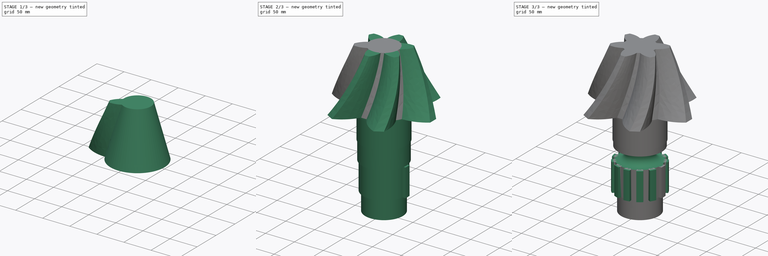
[diagram: build sequence overview — one tinted view per stage of 3, left to right]
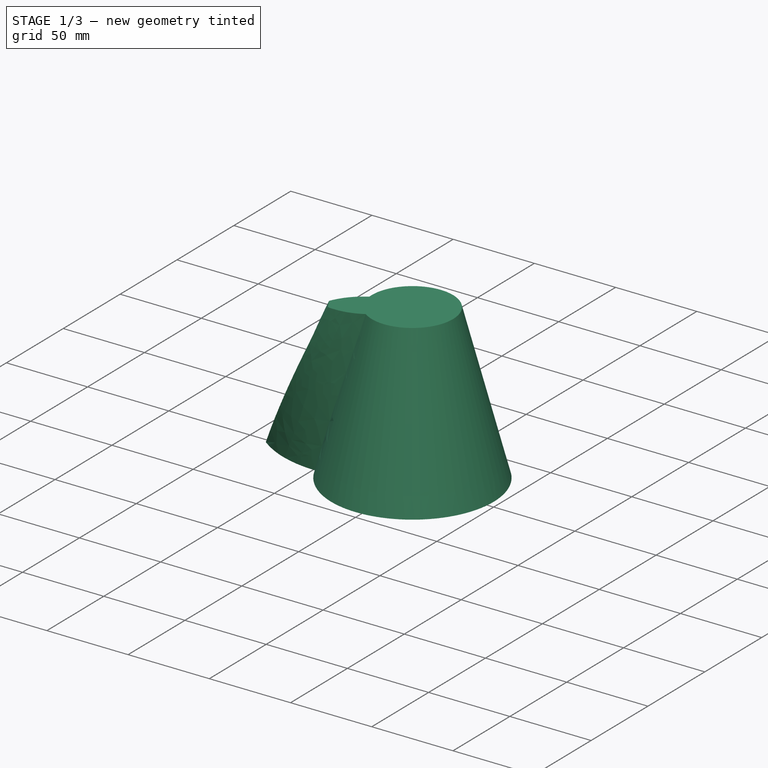
[diagram: stage 1 of 3 — iso view after this stage's code; geometry added in this stage tinted green]
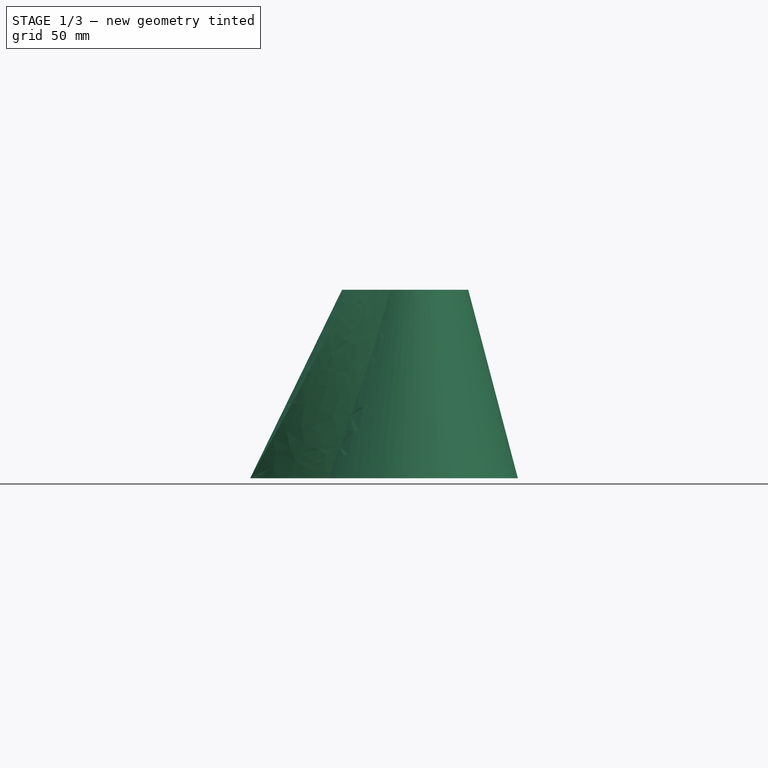
[diagram: stage 1 of 3 — front view after this stage's code; geometry added in this stage tinted green]
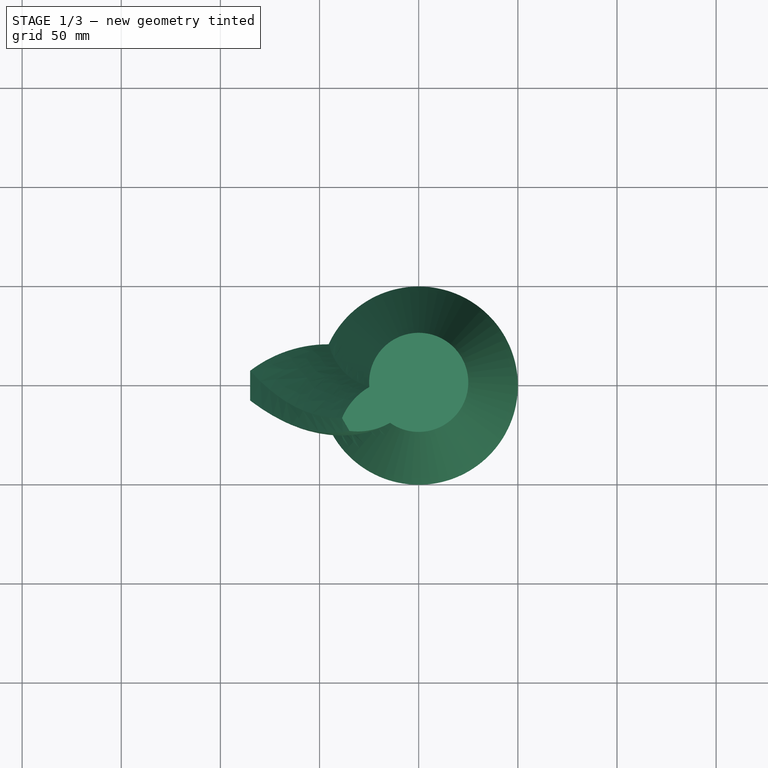
[diagram: stage 1 of 3 — top view after this stage's code; geometry added in this stage tinted green]
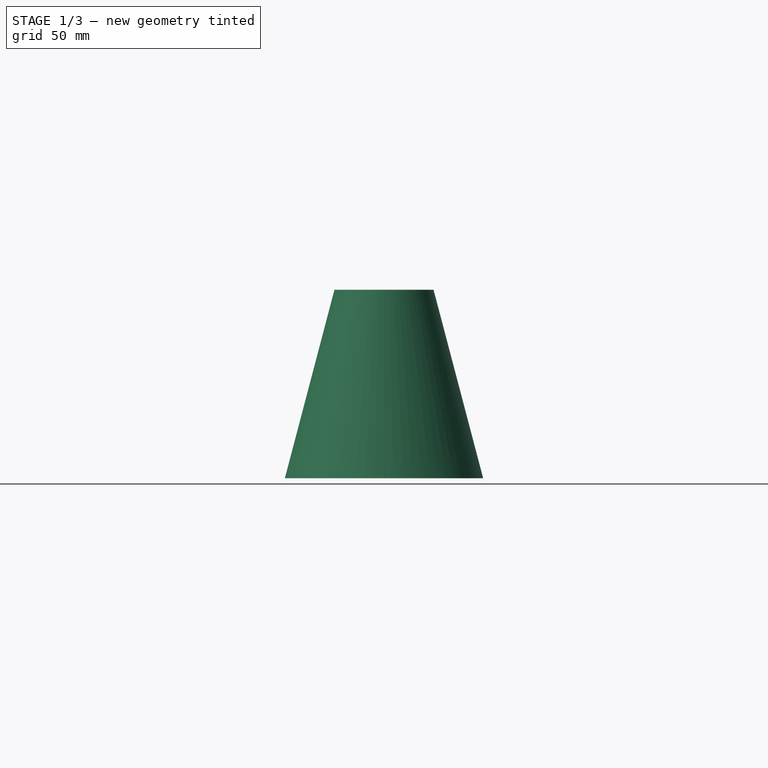
[diagram: stage 1 of 3 — right view after this stage's code; geometry added in this stage tinted green]
FCSTD DOCUMENT  (FreeCAD 0.21R33771 (Git))
Label: ex95
License: All rights reserved
LicenseURL: https://en.wikipedia.org/wiki/All_rights_reserved
objects: Sketcher::SketchObject×6, Part::Part2DObjectPython×2, PartDesign::AdditiveLoft×2, PartDesign::PolarPattern×2, PartDesign::Revolution×1, PartDesign::Pad×1, PartDesign::Groove×1, PartDesign::Body×1
note: 21 computed .brp shape members not serialized (recipe doc carries the construction recipe); baked Part::Feature solids carry a one-line shape summary decoded from their .brp

FEATURE [Sketcher::SketchObject] Sketch
  FullyConstrained = false
  MapMode = 5
  Support = -> [XY_Plane]
  sketch-geometry (4):
    g0: LineSegment StartX=-85 StartY=7.5 StartZ=0 EndX=-85 EndY=-7.5 EndZ=0
    g1: ArcOfCircle CenterX=-45.5197 CenterY=-44.1363 CenterZ=0 NormalX=0 NormalY=0 NormalZ=1 AngleXU=0 Radius=65 StartAngle=1.4076 EndAngle=2.22357
    g2: ArcOfCircle CenterX=-45.5197 CenterY=44.1363 CenterZ=0 NormalX=0 NormalY=0 NormalZ=1 AngleXU=0 Radius=65 StartAngle=4.05962 EndAngle=4.87559
    g3: ArcOfCircle CenterX=10.8671 CenterY=1.54e-14 CenterZ=0 NormalX=0 NormalY=0 NormalZ=1 AngleXU=0 Radius=50 StartAngle=2.73008 EndAngle=3.55311
  constraints (12):
    c: Symmetric(g0,g0,g-1)
    c: Coincident(g1,g0)
    c: Coincident(g2,g0)
    c: Equal(g1,g2)
    c: Symmetric(g1,g2,g-1)
    c: DistanceY(g0,g0) = 15
    c: DistanceY(g2,g1) = 40
    c: DistanceX(g0,g-1) = 85
    c: Radius(g1) = 65
    c: Coincident(g3,g2)
    c: Coincident(g3,g1)
    c: Radius(g3) = 50
FEATURE [Part::Part2DObjectPython] Clone2D  label="Sketch (2D)"  # Draft 2D object (typed FeaturePython)
  Fuse = false
  Objects = -> [Sketch]
  Placement = pos=(0,0,45) rot=(0,0,1;0.261799rad)
  Scale = (0.75,0.75,1)
FEATURE [Part::Part2DObjectPython] Clone2D001  label="Sketch (2D)001"  # Draft 2D object (typed FeaturePython)
  Fuse = false
  Objects = -> [Sketch]
  Placement = pos=(0,0,95) rot=(0,0,1;0.523599rad)
  Scale = (0.5,0.5,1)
FEATURE [Sketcher::SketchObject] Sketch001
  FullyConstrained = true
  MapMode = 5
  Support = -> [XY_Plane]
  sketch-geometry (1):
    g0: Circle CenterX=0 CenterY=0 CenterZ=0 NormalX=0 NormalY=0 NormalZ=1 AngleXU=0 Radius=50
  constraints (2):
    c: Coincident(g0,g-1)
    c: Radius(g0) = 50
FEATURE [Sketcher::SketchObject] Sketch002
  AttachmentOffset = pos=(0,0,95) rot=(0,0,1;0rad)
  FullyConstrained = true
  MapMode = 5
  Placement = pos=(0,0,95) rot=(0,0,1;0rad)
  Support = -> [XY_Plane]
  sketch-geometry (1):
    g0: Circle CenterX=0 CenterY=0 CenterZ=0 NormalX=0 NormalY=0 NormalZ=1 AngleXU=0 Radius=25
  constraints (2):
    c: Coincident(g0,g-1)
    c: Radius(g0) = 25
FEATURE [PartDesign::AdditiveLoft] AdditiveLoft
  Closed = false
  Profile = -> Sketch001
  Ruled = false
  Sections = -> [Sketch002]
FEATURE [PartDesign::AdditiveLoft] AdditiveLoft001
  BaseFeature = -> AdditiveLoft
  Closed = false
  Profile = -> Sketch
  Ruled = false
  Sections = -> [Clone2D,Clone2D001]
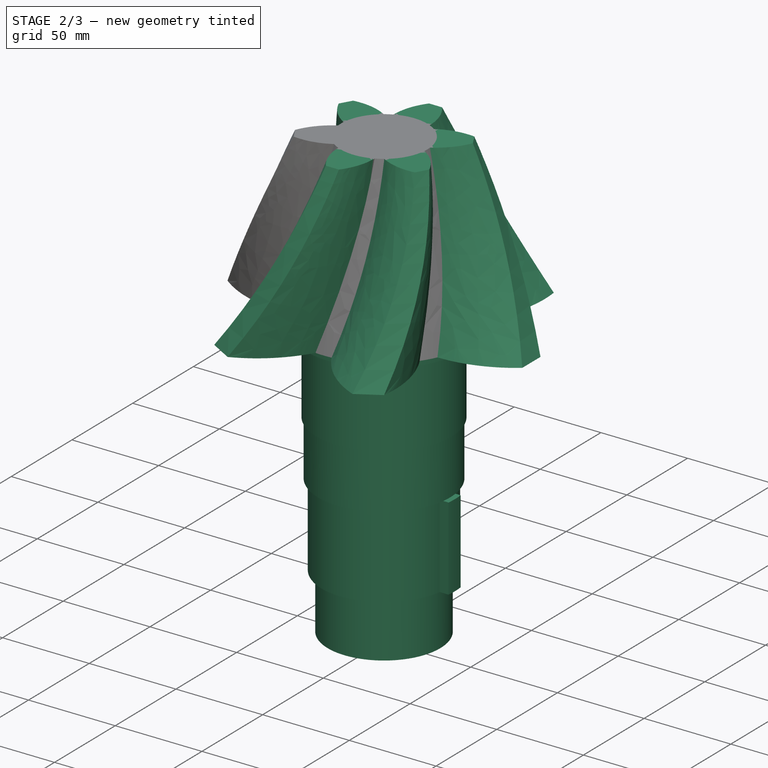
[diagram: stage 2 of 3 — iso view after this stage's code; geometry added in this stage tinted green]
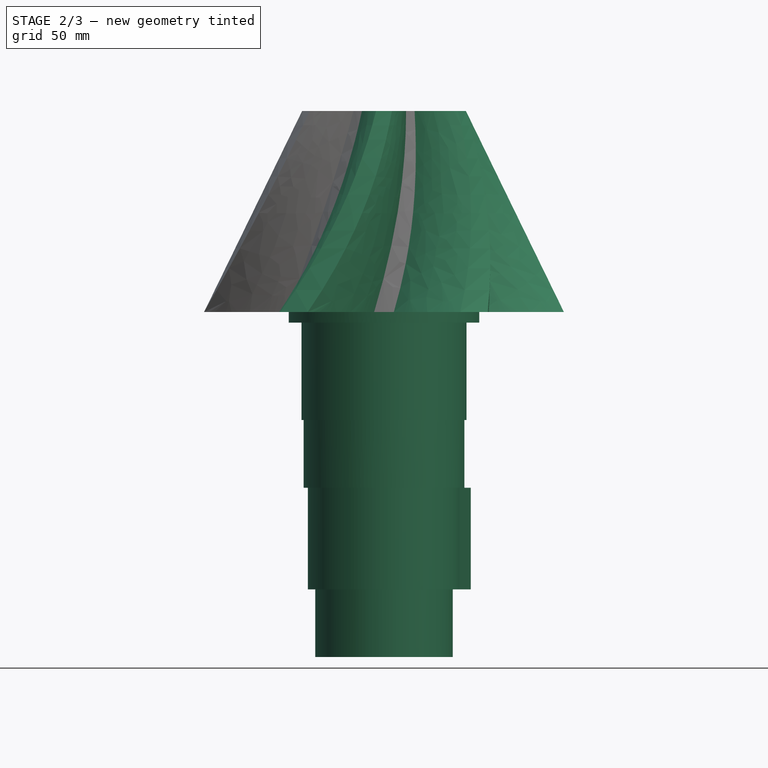
[diagram: stage 2 of 3 — front view after this stage's code; geometry added in this stage tinted green]
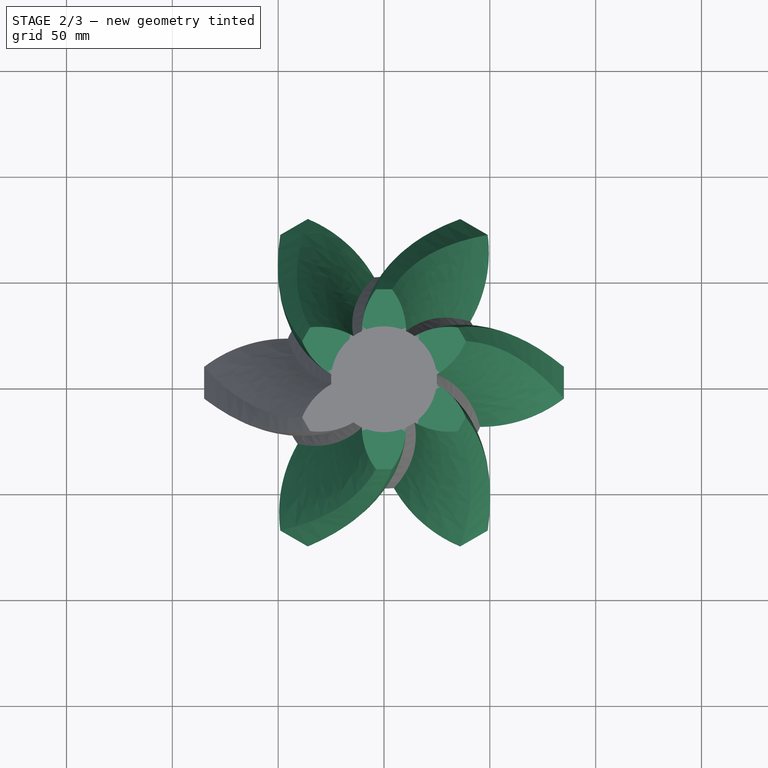
[diagram: stage 2 of 3 — top view after this stage's code; geometry added in this stage tinted green]
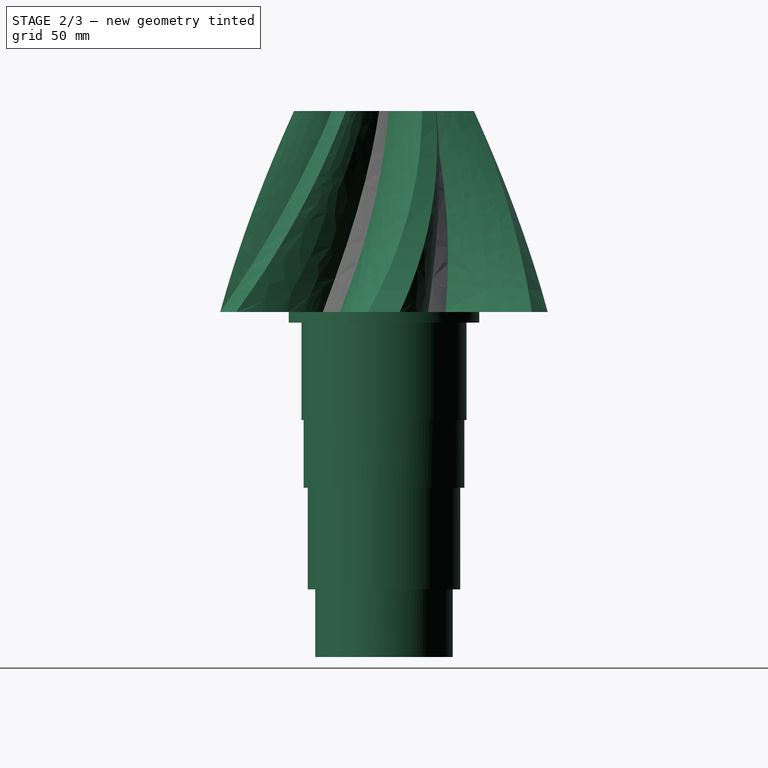
[diagram: stage 2 of 3 — right view after this stage's code; geometry added in this stage tinted green]
FEATURE [PartDesign::PolarPattern] PolarPattern
  Angle = 360
  Axis = -> Sketch [N_Axis]
  BaseFeature = -> AdditiveLoft001
  Occurrences = 6
  Originals = -> [AdditiveLoft001]
FEATURE [Sketcher::SketchObject] Sketch003
  FullyConstrained = true
  MapMode = 5
  Placement = pos=(0,0,0) rot=(1,0,0;1.5708rad)
  Support = -> [XZ_Plane]
  sketch-geometry (12):
    g0: LineSegment StartX=0 StartY=0 StartZ=0 EndX=45 EndY=0 EndZ=0
    g1: LineSegment StartX=45 StartY=0 StartZ=0 EndX=45 EndY=-5 EndZ=0
    g2: LineSegment StartX=45 StartY=-5 StartZ=0 EndX=39 EndY=-5 EndZ=0
    g3: LineSegment StartX=39 StartY=-5 StartZ=0 EndX=39 EndY=-51 EndZ=0
    g4: LineSegment StartX=39 StartY=-51 StartZ=0 EndX=38 EndY=-51 EndZ=0
    g5: LineSegment StartX=38 StartY=-51 StartZ=0 EndX=38 EndY=-83 EndZ=0
    g6: LineSegment StartX=38 StartY=-83 StartZ=0 EndX=36 EndY=-83 EndZ=0
    g7: LineSegment StartX=36 StartY=-83 StartZ=0 EndX=36 EndY=-131 EndZ=0
    g8: LineSegment StartX=36 StartY=-131 StartZ=0 EndX=32.5 EndY=-131 EndZ=0
    g9: LineSegment StartX=32.5 StartY=-131 StartZ=0 EndX=32.5 EndY=-163 EndZ=0
    g10: LineSegment StartX=0 StartY=-163 StartZ=0 EndX=0 EndY=0 EndZ=0
    g11: LineSegment StartX=32.5 StartY=-163 StartZ=0 EndX=0 EndY=-163 EndZ=0
  constraints (35):
    c: Coincident(g-1,g0)
    c: PointOnObject(g0,g-1)
    c: Coincident(g0,g1)
    c: Coincident(g1,g2)
    c: Horizontal(g2)
    c: Coincident(g2,g3)
    c: Coincident(g3,g4)
    c: Horizontal(g4)
    c: Coincident(g4,g5)
    c: Coincident(g5,g6)
    c: Coincident(g6,g7)
    c: Vertical(g7)
    c: Coincident(g7,g8)
    c: Coincident(g8,g9)
    c: PointOnObject(g10,g-2)
    c: Coincident(g10,g0)
    c: Horizontal(g8)
    c: Horizontal(g6)
    c: Vertical(g1)
    c: Vertical(g3)
    c: Vertical(g5)
    c: Vertical(g9)
    c: DistanceY(g1,g1) = 5
    c: DistanceY(g3,g3) = 46
    c: DistanceY(g5,g5) = 32
    c: DistanceY(g9,g9) = 32
    c: Coincident(g11,g9)
    c: Coincident(g11,g10)
    c: Horizontal(g11)
    c: DistanceX(g11,g11) = 32.5
    c: DistanceY(g7,g7) = 48
    c: Distance(g7,g10) = 36
    c: Distance(g4,g10) = 38
    c: Distance(g3,g10) = 39
    c: Distance(g0,g10) = 45
FEATURE [PartDesign::Revolution] Revolution
  Angle = 360
  Axis = (0,2e-16,1)
  Base = (0,0,0)
  BaseFeature = -> PolarPattern
  Profile = -> Sketch003
  ReferenceAxis = -> Sketch003 [V_Axis]
  Reversed = true
FEATURE [Sketcher::SketchObject] Sketch004
  FullyConstrained = false
  MapMode = 5
  Placement = pos=(0,-2.91e-14,-131) rot=(1,0,0;3.14159rad)
  Support = -> [Revolution]
  sketch-geometry (5):
    g0: LineSegment StartX=0 StartY=5 StartZ=0 EndX=40.694 EndY=5 EndZ=0
    g1: LineSegment StartX=40.6946 StartY=5 StartZ=0 EndX=40.6946 EndY=-4.995 EndZ=0
    g2: LineSegment StartX=40.6946 StartY=-4.995 StartZ=0 EndX=0 EndY=-4.995 EndZ=0
    g3: LineSegment StartX=0 StartY=-4.995 StartZ=0 EndX=0 EndY=5 EndZ=0
    g4: ArcOfCircle CenterX=0 CenterY=0 CenterZ=0 NormalX=0 NormalY=0 NormalZ=1 AngleXU=0 Radius=41 StartAngle=6.16105 EndAngle=6.40544
  constraints (9):
    c: Coincident(g2,g3)
    c: Coincident(g3,g0)
    c: Horizontal(g0)
    c: Horizontal(g2)
    c: Vertical(g3)
    c: PointOnObject(g0,g-2)
    c: Coincident(g4,g2)
    c: Coincident(g1,g2)
    c: Vertical(g1)
FEATURE [PartDesign::Pad] Pad
  BaseFeature = -> Revolution
  Direction = (0,-2e-16,-1)
  Length = 48
  Length2 = 10
  Profile = -> Sketch004
  ReferenceAxis = -> Sketch004 [N_Axis]
  Reversed = true
  Type = 0
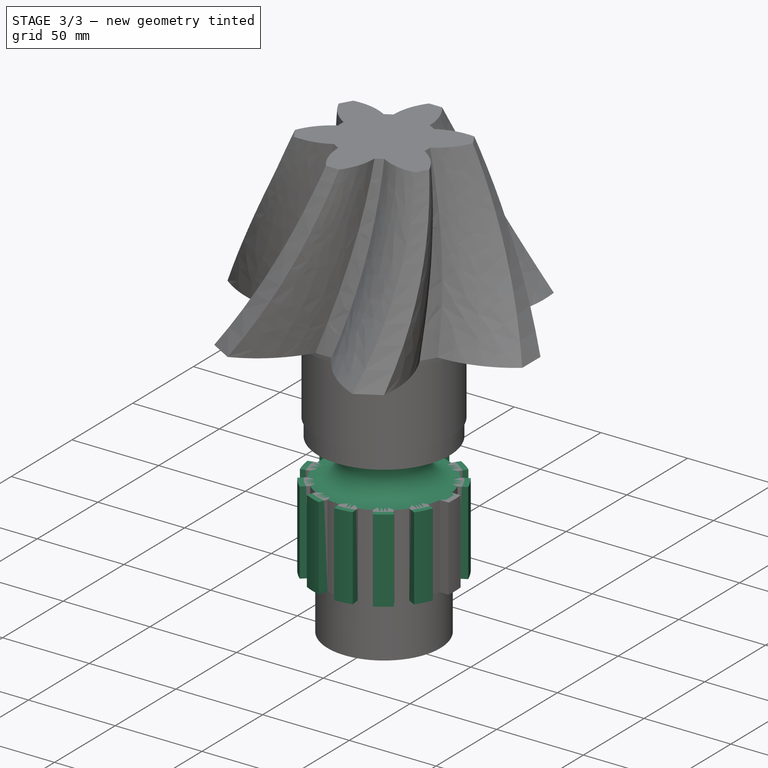
[diagram: stage 3 of 3 — iso view after this stage's code; geometry added in this stage tinted green]
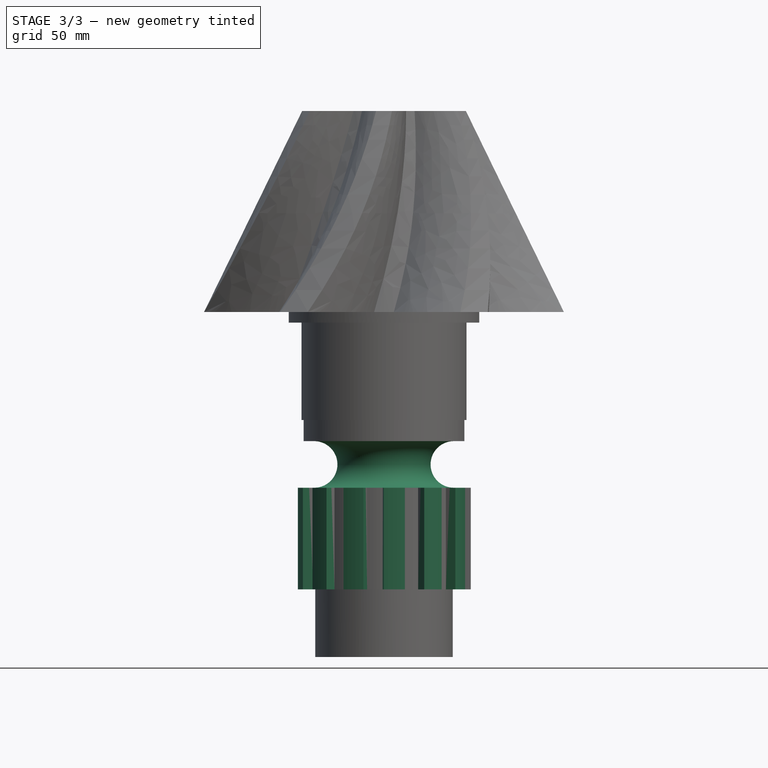
[diagram: stage 3 of 3 — front view after this stage's code; geometry added in this stage tinted green]
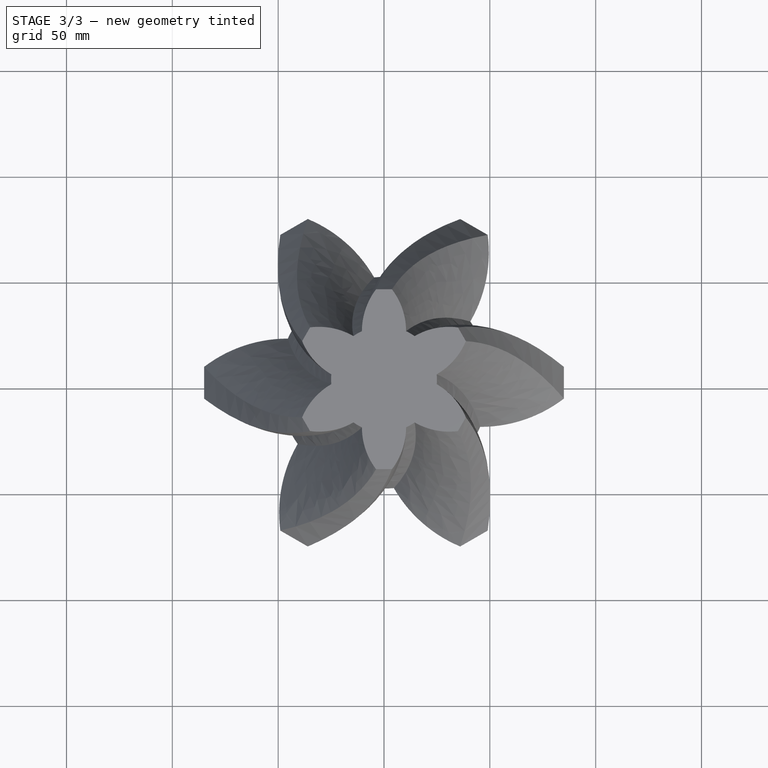
[diagram: stage 3 of 3 — top view after this stage's code; geometry added in this stage tinted green]
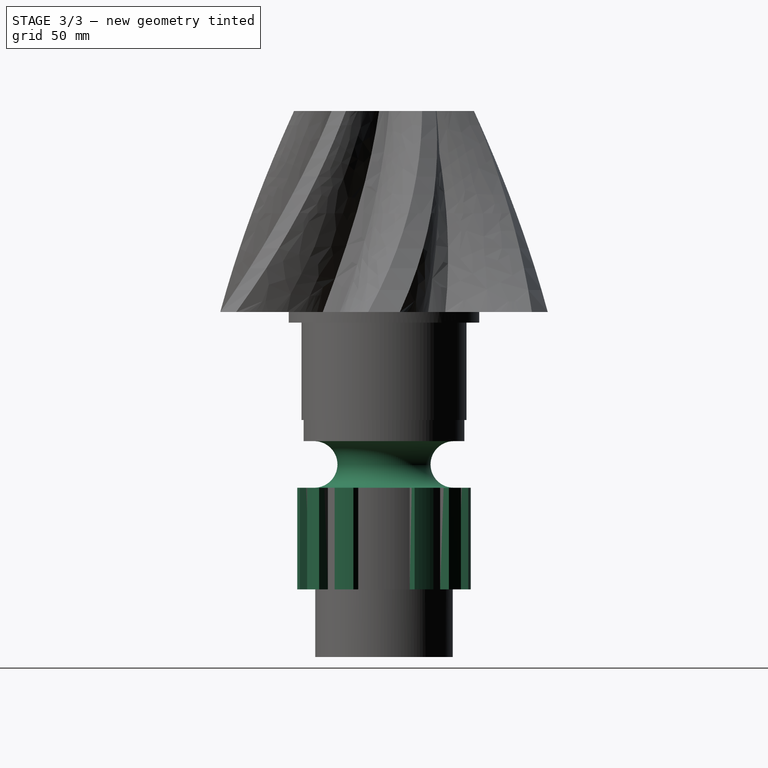
[diagram: stage 3 of 3 — right view after this stage's code; geometry added in this stage tinted green]
FEATURE [PartDesign::PolarPattern] PolarPattern001
  Angle = 360
  Axis = -> Sketch004 [N_Axis]
  BaseFeature = -> Pad
  Occurrences = 13
  Originals = -> [Pad]
FEATURE [Sketcher::SketchObject] Sketch005
  ExternalGeometry = -> [PolarPattern001]
  FullyConstrained = false
  MapMode = 5
  Placement = pos=(0,0,0) rot=(1,0,0;1.5708rad)
  Support = -> [XZ_Plane]
  sketch-geometry (4):
    g0: ArcOfCircle CenterX=33 CenterY=-72 CenterZ=0 NormalX=0 NormalY=0 NormalZ=1 AngleXU=0 Radius=11 StartAngle=1.5708 EndAngle=4.71239
    g1: LineSegment StartX=33 StartY=-61 StartZ=0 EndX=95.5 EndY=-61 EndZ=0
    g2: LineSegment StartX=95.5 StartY=-61 StartZ=0 EndX=95.5 EndY=-83 EndZ=0
    g3: LineSegment StartX=95.5 StartY=-83 StartZ=0 EndX=33 EndY=-83 EndZ=0
  constraints (12):
    c: Coincident(g1,g2)
    c: Coincident(g2,g3)
    c: Horizontal(g1)
    c: Horizontal(g3)
    c: Vertical(g2)
    c: Coincident(g0,g1)
    c: DistanceY(g2,g2) = 22
    c: DistanceX(g0,g1) = 62.5
    c: Radius(g0) = 11
    c: Coincident(g0,g3)
    c: PointOnObject(g-4,g3)
    c: Distance(g0,g-5) = 5
FEATURE [PartDesign::Groove] Groove
  Angle = 360
  Axis = (0,2e-16,1)
  Base = (0,0,0)
  BaseFeature = -> PolarPattern001
  Profile = -> Sketch005
  ReferenceAxis = -> Sketch005 [V_Axis]
FEATURE [PartDesign::Body] Body
  Group = -> [Sketch,Clone2D,Clone2D001,Sketch001,Sketch002,AdditiveLoft,AdditiveLoft001,PolarPattern,Sketch003,Revolution,Sketch004,Pad,PolarPattern001,Sketch005,Groove]
  Origin = -> Origin
  Tip = -> Groove
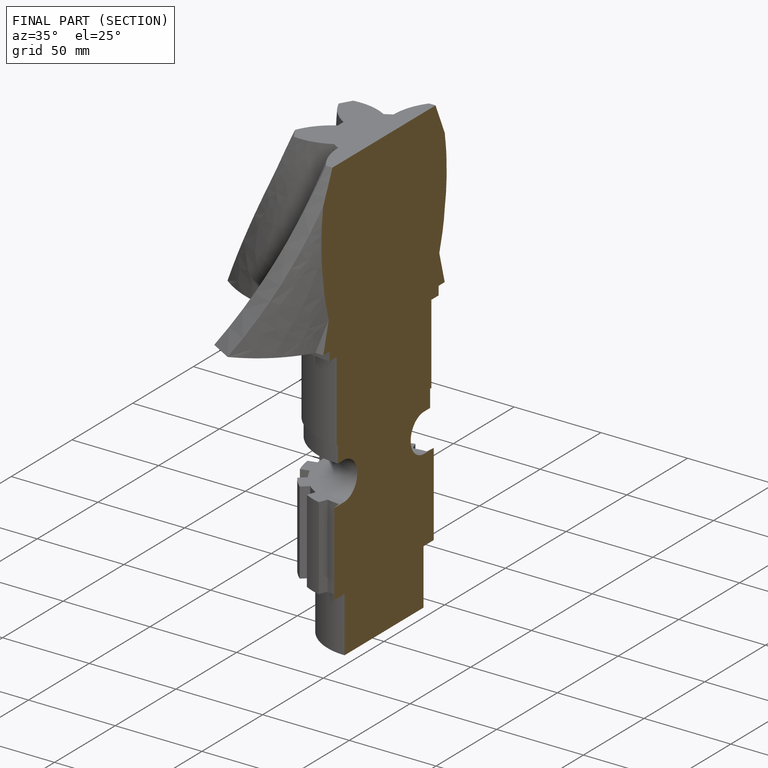
[diagram: finished part — half-section view (interior)]
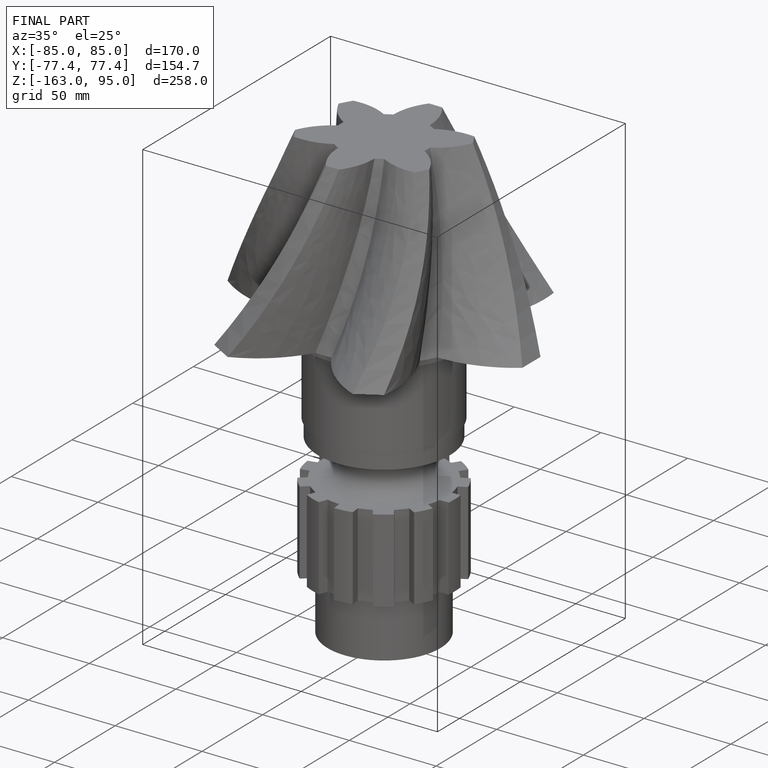
[diagram: finished part — iso view with bounding-box wireframe]
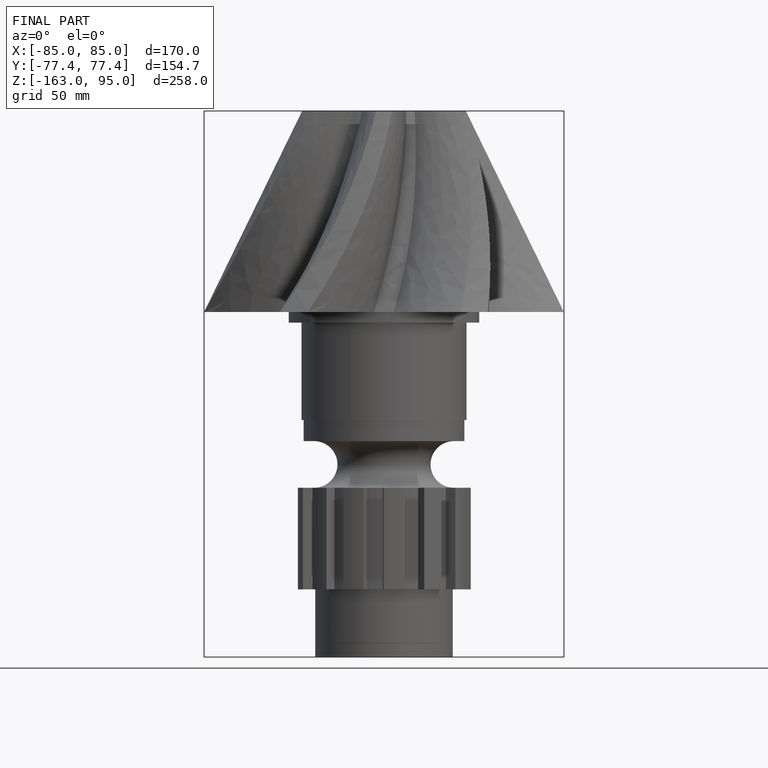
[diagram: finished part — front view with bounding-box wireframe]
